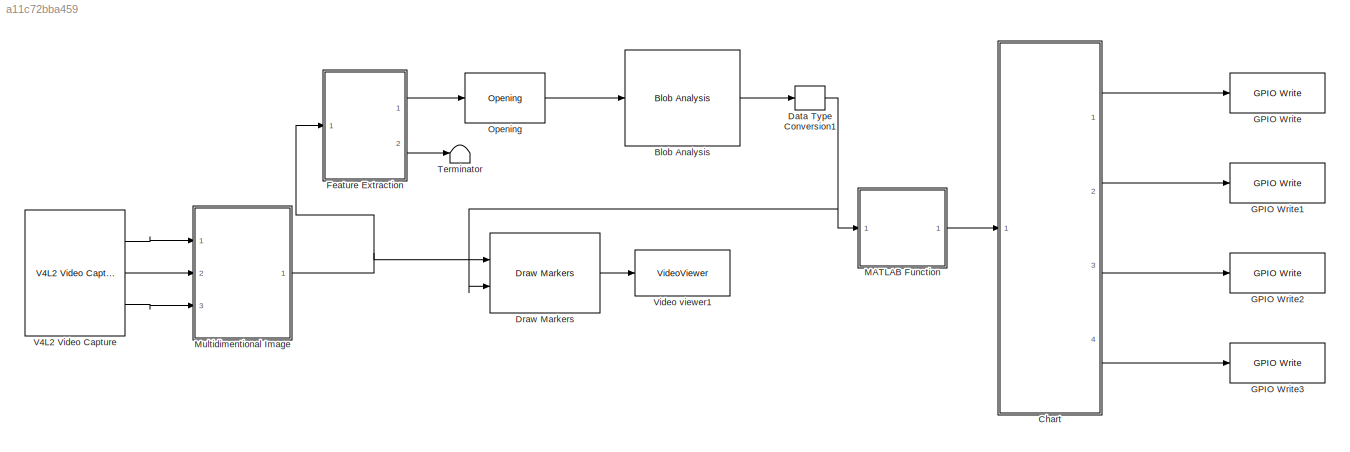
MODEL slx_a11c72bba459
KIND model
CONFIG AbsTol = auto
CONFIG EnableMultiTasking = on
CONFIG FixedStep = auto
CONFIG MaxStep = auto
CONFIG MinStep = auto
CONFIG RelTol = 1e-3
CONFIG SampleTimeConstraint = Unconstrained
CONFIG Solver = FixedStepAuto
CONFIG SolverName = FixedStepAuto
CONFIG StartTime = 0.0
CONFIG StopTime = inf
BLOCK [Reference] Blob Analysis  REF=visionstatistics/Blob Analysis
  Ports = [1, 1]
  SourceBlock = visionstatistics/Blob Analysis
  SourceProductBaseCode = VP
  SourceProductName = Computer Vision Toolbox
  SourceType = Blob Analysis
  Tag = vipblks_row_conv
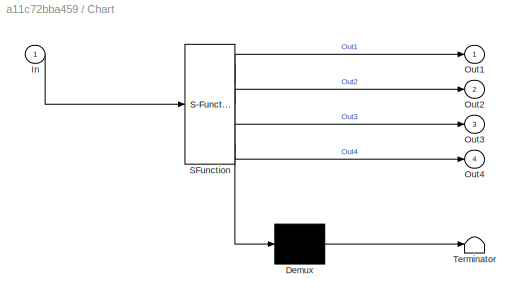
BLOCK [SubSystem] Chart
  ErrorFcn = Stateflow.Translate.translate
  PermitHierarchicalResolution = ExplicitOnly
  Ports = [1, 4]
  RequestExecContextInheritance = off
  SFBlockType = Chart
  TreatAsAtomicUnit = on
BLOCK [Demux] Chart/ Demux 
  Outputs = 1
  Ports = [1, 1]
BLOCK [S-Function] Chart/ SFunction 
  EnableBusSupport = off
  FunctionName = sf_sfun
  PortCounts = [1 5]
  Ports = [1, 5]
  SFcnIsStateOwnerBlock = off
  SFunctionDeploymentMode = off
  Tag = Stateflow S-Function ObjectDetectLabConditions 2
BLOCK [Terminator] Chart/ Terminator 
BLOCK [Inport] Chart/In
  IconDisplay = Port number
BLOCK [Outport] Chart/Out1
  IconDisplay = Port number
BLOCK [Outport] Chart/Out2
  IconDisplay = Port number
  Port = 2
BLOCK [Outport] Chart/Out3
  IconDisplay = Port number
  Port = 3
BLOCK [Outport] Chart/Out4
  IconDisplay = Port number
  Port = 4
BLOCK [DataTypeConversion] Data Type Conversion1
  RndMeth = Floor
  SaturateOnIntegerOverflow = off
BLOCK [Reference] Draw Markers  REF=visiontextngfix/Draw Markers
  Ports = [2, 1]
  SourceBlock = visiontextngfix/Draw Markers
  SourceProductBaseCode = VP
  SourceProductName = Computer Vision Toolbox
  SourceType = Draw Markers
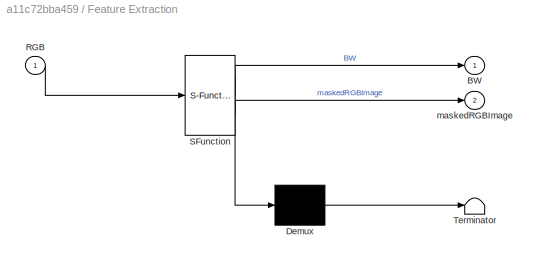
BLOCK [SubSystem] Feature Extraction
  ErrorFcn = Stateflow.Translate.translate
  PermitHierarchicalResolution = ExplicitOnly
  Ports = [1, 2]
  RequestExecContextInheritance = off
  SFBlockType = MATLAB Function
  TreatAsAtomicUnit = on
BLOCK [Demux] Feature Extraction/ Demux 
  Outputs = 1
  Ports = [1, 1]
BLOCK [S-Function] Feature Extraction/ SFunction 
  EnableBusSupport = off
  FunctionName = sf_sfun
  PortCounts = [1 3]
  Ports = [1, 3]
  SFcnIsStateOwnerBlock = off
  SFunctionDeploymentMode = off
  Tag = Stateflow S-Function ObjectDetectLabConditions 3
BLOCK [Terminator] Feature Extraction/ Terminator 
BLOCK [Outport] Feature Extraction/BW
  IconDisplay = Port number
BLOCK [Inport] Feature Extraction/RGB
  IconDisplay = Port number
BLOCK [Outport] Feature Extraction/maskedRGBImage
  IconDisplay = Port number
  Port = 2
BLOCK [Reference] GPIO Write  REF=embdlinuxlib/GPIO Write
  Ports = [1]
  SourceBlock = embdlinuxlib/GPIO Write
  SourceProductBaseCode = SC_BEAGLEBONE_BLUE
  SourceProductName = Simulink Coder Support Package for BeagleBone Blue Hardware
  SourceType = GPIO Write
BLOCK [Reference] GPIO Write1  REF=embdlinuxlib/GPIO Write
  Ports = [1]
  SourceBlock = embdlinuxlib/GPIO Write
  SourceProductBaseCode = SC_BEAGLEBONE_BLUE
  SourceProductName = Simulink Coder Support Package for BeagleBone Blue Hardware
  SourceType = GPIO Write
BLOCK [Reference] GPIO Write2  REF=embdlinuxlib/GPIO Write
  Ports = [1]
  SourceBlock = embdlinuxlib/GPIO Write
  SourceProductBaseCode = SC_BEAGLEBONE_BLUE
  SourceProductName = Simulink Coder Support Package for BeagleBone Blue Hardware
  SourceType = GPIO Write
BLOCK [Reference] GPIO Write3  REF=embdlinuxlib/GPIO Write
  Ports = [1]
  SourceBlock = embdlinuxlib/GPIO Write
  SourceProductBaseCode = SC_BEAGLEBONE_BLUE
  SourceProductName = Simulink Coder Support Package for BeagleBone Blue Hardware
  SourceType = GPIO Write
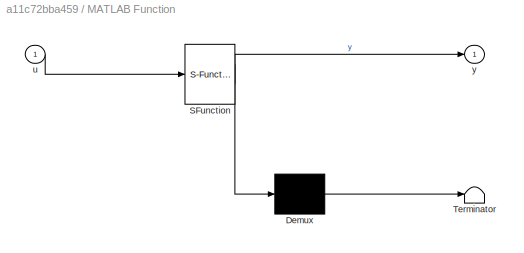
BLOCK [SubSystem] MATLAB Function
  ErrorFcn = Stateflow.Translate.translate
  PermitHierarchicalResolution = ExplicitOnly
  Ports = [1, 1]
  RequestExecContextInheritance = off
  SFBlockType = MATLAB Function
  TreatAsAtomicUnit = on
BLOCK [Demux] MATLAB Function/ Demux 
  Outputs = 1
  Ports = [1, 1]
BLOCK [S-Function] MATLAB Function/ SFunction 
  EnableBusSupport = off
  FunctionName = sf_sfun
  PortCounts = [1 2]
  Ports = [1, 2]
  SFcnIsStateOwnerBlock = off
  SFunctionDeploymentMode = off
  Tag = Stateflow S-Function ObjectDetectLabConditions 5
BLOCK [Terminator] MATLAB Function/ Terminator 
BLOCK [Inport] MATLAB Function/u
  IconDisplay = Port number
BLOCK [Outport] MATLAB Function/y
  IconDisplay = Port number
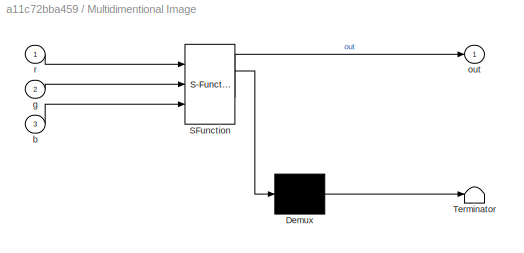
BLOCK [SubSystem] Multidimentional Image
  ErrorFcn = Stateflow.Translate.translate
  PermitHierarchicalResolution = ExplicitOnly
  Ports = [3, 1]
  RequestExecContextInheritance = off
  SFBlockType = MATLAB Function
  TreatAsAtomicUnit = on
BLOCK [Demux] Multidimentional Image/ Demux 
  Outputs = 1
  Ports = [1, 1]
BLOCK [S-Function] Multidimentional Image/ SFunction 
  EnableBusSupport = off
  FunctionName = sf_sfun
  PortCounts = [3 2]
  Ports = [3, 2]
  SFcnIsStateOwnerBlock = off
  SFunctionDeploymentMode = off
  Tag = Stateflow S-Function ObjectDetectLabConditions 1
BLOCK [Terminator] Multidimentional Image/ Terminator 
BLOCK [Inport] Multidimentional Image/b
  IconDisplay = Port number
  Port = 3
BLOCK [Inport] Multidimentional Image/g
  IconDisplay = Port number
  Port = 2
BLOCK [Outport] Multidimentional Image/out
  IconDisplay = Port number
BLOCK [Inport] Multidimentional Image/r
  IconDisplay = Port number
BLOCK [Reference] Opening  REF=visionmorphops/Opening
  Ports = [1, 1]
  SourceBlock = visionmorphops/Opening
  SourceProductBaseCode = VP
  SourceProductName = Computer Vision Toolbox
  SourceType = Opening
BLOCK [Terminator] Terminator
BLOCK [Reference] V4L2 Video Capture  REF=embdlinuxlib/V4L2 Video Capture
  Ports = [0, 3]
  SourceBlock = embdlinuxlib/V4L2 Video Capture
  SourceProductBaseCode = SC_BEAGLEBONE_BLUE
  SourceProductName = Simulink Coder Support Package for BeagleBone Blue Hardware
  SourceType = V4L2 Video Capture
BLOCK [VideoViewer] Video viewer1
  FigPos = [816 654 410 307]
  Ports = [1]
  ScopeSpecificationString = vipscopes.VideoViewerScopeCfg('CurrentConfiguration', extmgr.ConfigurationSet(extmgr.Configuration('Core','General UI',true),extmgr.Configuration('Core','Source UI',true),extmgr.Configuration('Sources','WiredSimulink',true),extmgr.Configuration('Visuals','Video',true),extmgr.Configuration('Tools','Image Navigation Tools',true),extmgr.Configuration('Tools','Image Tool',true),extmgr.Configuration('T...<+75ch>
LINE Blob Analysis:1 -> Data Type Conversion1:1
LINE Chart:1 -> GPIO Write:1
LINE Chart:2 -> GPIO Write1:1
LINE Chart:3 -> GPIO Write2:1
LINE Chart:4 -> GPIO Write3:1
NET Data Type Conversion1:1 -> Draw Markers:2, MATLAB Function:1
LINE Draw Markers:1 -> Video viewer1:1
LINE Feature Extraction:1 -> Opening:1
LINE Feature Extraction:2 -> Terminator:1
LINE MATLAB Function:1 -> Chart:1
NET Multidimentional Image:1 -> Draw Markers:1, Feature Extraction:1
LINE Opening:1 -> Blob Analysis:1
LINE V4L2 Video Capture:1 -> Multidimentional Image:1
LINE V4L2 Video Capture:2 -> Multidimentional Image:2
LINE V4L2 Video Capture:3 -> Multidimentional Image:3
note: NET lines group one-source signal fan-out (src -> all destinations, sorted); 1:1 wires keep LINE
CHART Multidimentional Image states=1 transitions=1
  STATE_LABEL 'eML_blk_kernel()'
  STATE_LABEL 'SCRIPT:\nfunction out = m_image(r,g,b)\n% Converting seperate R,G,B signals into single multidimentional image\nout = cat(3,r,g,b);\nend\n\n'
CHART Chart states=0 transitions=18
CHART Feature Extraction states=1 transitions=1
  STATE_LABEL 'eML_blk_kernel()'
  STATE_LABEL 'SCRIPT:\nfunction [BW,maskedRGBImage] = createMask(RGB)\n%  [BW,MASKEDRGBIMAGE] = createMask(RGB) thresholds image RGB using\n%  auto-generated code from the colorThresholder App. The colorspace and\n%  minimum/maximum values for each channel of the colorspace were set \n%  and result in a binary mask BW and a composite image maskedRGBImage,\n%  which shows the original RGB image values under the mask B...<+934ch>'
CHART MATLAB Function states=1 transitions=1
  STATE_LABEL 'eML_blk_kernel()'
  STATE_LABEL 'SCRIPT:\nfunction y = fcn(u)\n\ny = mean(u);\n'
